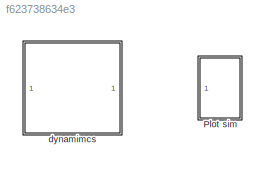
MODEL slx_f623738634e3
KIND model
CONFIG AbsTol = auto
CONFIG EnableMultiTasking = off
CONFIG FixedStep = auto
CONFIG MaxStep = auto
CONFIG MinStep = auto
CONFIG RelTol = 1e-3
CONFIG SampleTimeConstraint = Unconstrained
CONFIG Solver = VariableStepAuto
CONFIG SolverName = VariableStepAuto
CONFIG StartTime = 0.0
CONFIG StopTime = 10.0
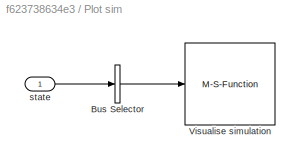
BLOCK [SubSystem] Plot sim
  Ports = [1]
  RequestExecContextInheritance = off
  Variant = off
BLOCK [BusSelector] Plot sim/Bus Selector
  OutputAsBus = on
  OutputSignals = X,Y,Z,phi,the,psi
  Ports = [1, 1]
BLOCK [M-S-Function] Plot sim/Visualise simulation
  FunctionName = SF_plot_sim
  Parameters = quad
  Ports = [1]
BLOCK [Inport] Plot sim/state
  IconDisplay = Port number
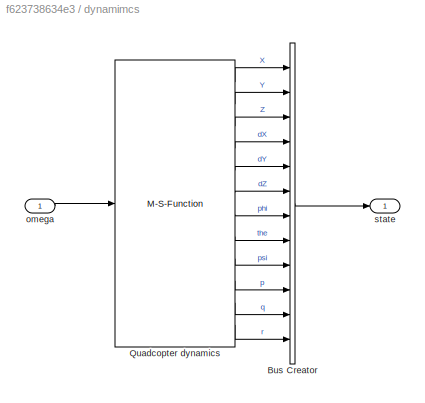
BLOCK [SubSystem] dynamimcs
  Ports = [1, 1]
  RequestExecContextInheritance = off
  Variant = off
BLOCK [BusCreator] dynamimcs/Bus Creator
  DisplayOption = bar
  InheritFromInputs = on
  Inputs = 12
  Ports = [12, 1]
BLOCK [M-S-Function] dynamimcs/Quadcopter dynamics
  FunctionName = SF_quad_dynamics
  Parameters = quad, x0
  Ports = [1, 12]
BLOCK [Inport] dynamimcs/omega
  IconDisplay = Port number
BLOCK [Outport] dynamimcs/state
  IconDisplay = Port number
LINE Plot sim/Bus Selector:1 -> Plot sim/Visualise simulation:1
LINE Plot sim/state:1 -> Plot sim/Bus Selector:1
LINE dynamimcs/Bus Creator:1 -> dynamimcs/state:1
LINE dynamimcs/Quadcopter dynamics:1 -> dynamimcs/Bus Creator:1
LINE dynamimcs/Quadcopter dynamics:10 -> dynamimcs/Bus Creator:10
LINE dynamimcs/Quadcopter dynamics:11 -> dynamimcs/Bus Creator:11
LINE dynamimcs/Quadcopter dynamics:12 -> dynamimcs/Bus Creator:12
LINE dynamimcs/Quadcopter dynamics:2 -> dynamimcs/Bus Creator:2
LINE dynamimcs/Quadcopter dynamics:3 -> dynamimcs/Bus Creator:3
LINE dynamimcs/Quadcopter dynamics:4 -> dynamimcs/Bus Creator:4
LINE dynamimcs/Quadcopter dynamics:5 -> dynamimcs/Bus Creator:5
LINE dynamimcs/Quadcopter dynamics:6 -> dynamimcs/Bus Creator:6
LINE dynamimcs/Quadcopter dynamics:7 -> dynamimcs/Bus Creator:7
LINE dynamimcs/Quadcopter dynamics:8 -> dynamimcs/Bus Creator:8
LINE dynamimcs/Quadcopter dynamics:9 -> dynamimcs/Bus Creator:9
LINE dynamimcs/omega:1 -> dynamimcs/Quadcopter dynamics:1
